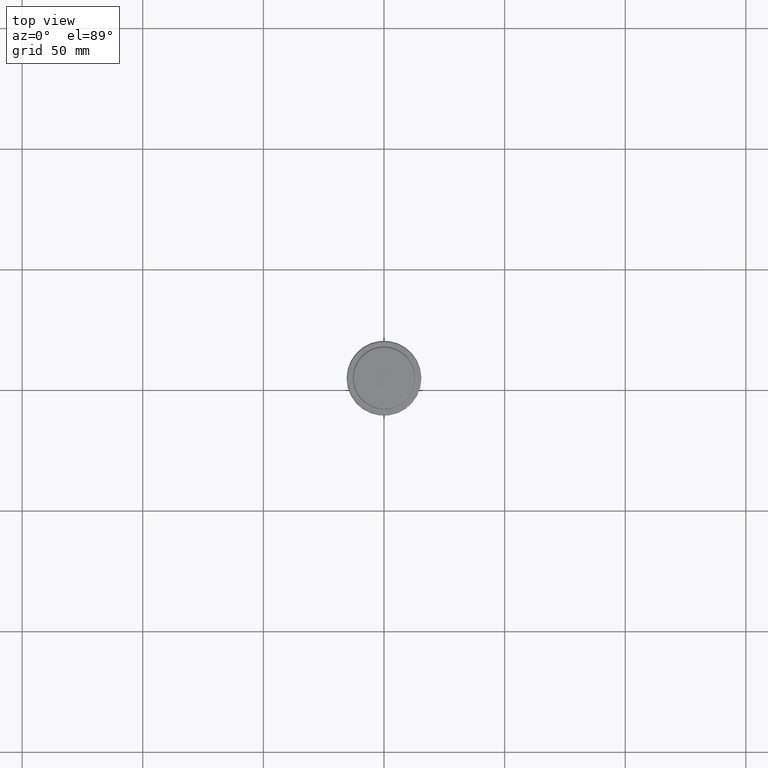
[diagram: clean part render]
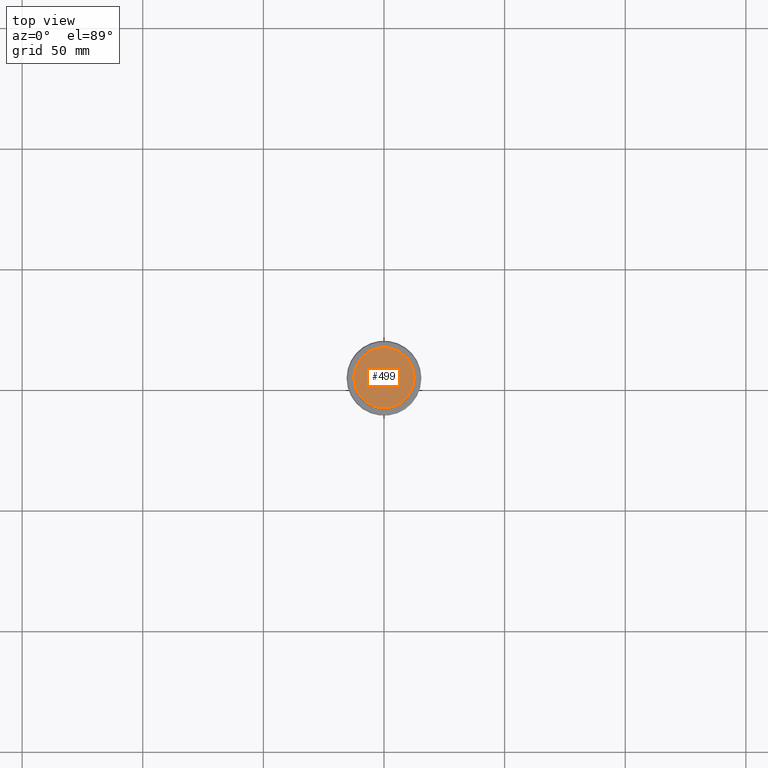
[diagram: same view with one face highlighted and labeled with its STEP entity id]
A machine part, top view. The second image highlights one B-rep face of the part: STEP entity #499.
In plain terms, the highlighted planar face has unit normal (0, -0, 1).
Its self-contained STEP definition (entity closure, byte-faithful):
#11 = VERTEX_POINT ( 'NONE', #846 ) ;
#188 = DIRECTION ( 'NONE',  ( 1.000000000000000000, 0.000000000000000000, 0.000000000000000000 ) ) ;
#263 = DIRECTION ( 'NONE',  ( 0.000000000000000000, -0.000000000000000000, 1.000000000000000000 ) ) ;
#301 = ORIENTED_EDGE ( 'NONE', *, *, #380, .T. ) ;
#380 = EDGE_CURVE ( 'NONE', #1004, #11, #737, .T. ) ;
#449 = EDGE_LOOP ( 'NONE', ( #301, #1047 ) ) ;
#482 = PLANE ( 'NONE',  #1175 ) ;
#499 = ADVANCED_FACE ( 'NONE', ( #695 ), #482, .T. ) ;
#504 = CARTESIAN_POINT ( 'NONE',  ( -12.49999999999995737, 0.000000000000000000, 0.000000000000000000 ) ) ;
#532 = AXIS2_PLACEMENT_3D ( 'NONE', #1206, #790, #1308 ) ;
#609 = DIRECTION ( 'NONE',  ( 1.000000000000000000, 0.000000000000000000, 0.000000000000000000 ) ) ;
#695 = FACE_OUTER_BOUND ( 'NONE', #449, .T. ) ;
#719 = CARTESIAN_POINT ( 'NONE',  ( 0.000000000000000000, 0.000000000000000000, 0.000000000000000000 ) ) ;
#737 = CIRCLE ( 'NONE', #532, 12.49999999999995737 ) ;
#790 = DIRECTION ( 'NONE',  ( -0.000000000000000000, -0.000000000000000000, 1.000000000000000000 ) ) ;
#846 = CARTESIAN_POINT ( 'NONE',  ( 12.49999999999995737, 1.561424668912872745E-15, 0.000000000000000000 ) ) ;
#1004 = VERTEX_POINT ( 'NONE', #504 ) ;
#1036 = CIRCLE ( 'NONE', #1199, 12.49999999999995737 ) ;
#1047 = ORIENTED_EDGE ( 'NONE', *, *, #1165, .T. ) ;
#1165 = EDGE_CURVE ( 'NONE', #11, #1004, #1036, .T. ) ;
#1175 = AXIS2_PLACEMENT_3D ( 'NONE', #1262, #263, #609 ) ;
#1199 = AXIS2_PLACEMENT_3D ( 'NONE', #719, #1266, #188 ) ;
#1206 = CARTESIAN_POINT ( 'NONE',  ( 0.000000000000000000, 0.000000000000000000, 0.000000000000000000 ) ) ;
#1262 = CARTESIAN_POINT ( 'NONE',  ( 0.000000000000000000, 0.000000000000000000, 0.000000000000000000 ) ) ;
#1266 = DIRECTION ( 'NONE',  ( -0.000000000000000000, -0.000000000000000000, 1.000000000000000000 ) ) ;
#1308 = DIRECTION ( 'NONE',  ( 1.000000000000000000, 0.000000000000000000, 0.000000000000000000 ) ) ;